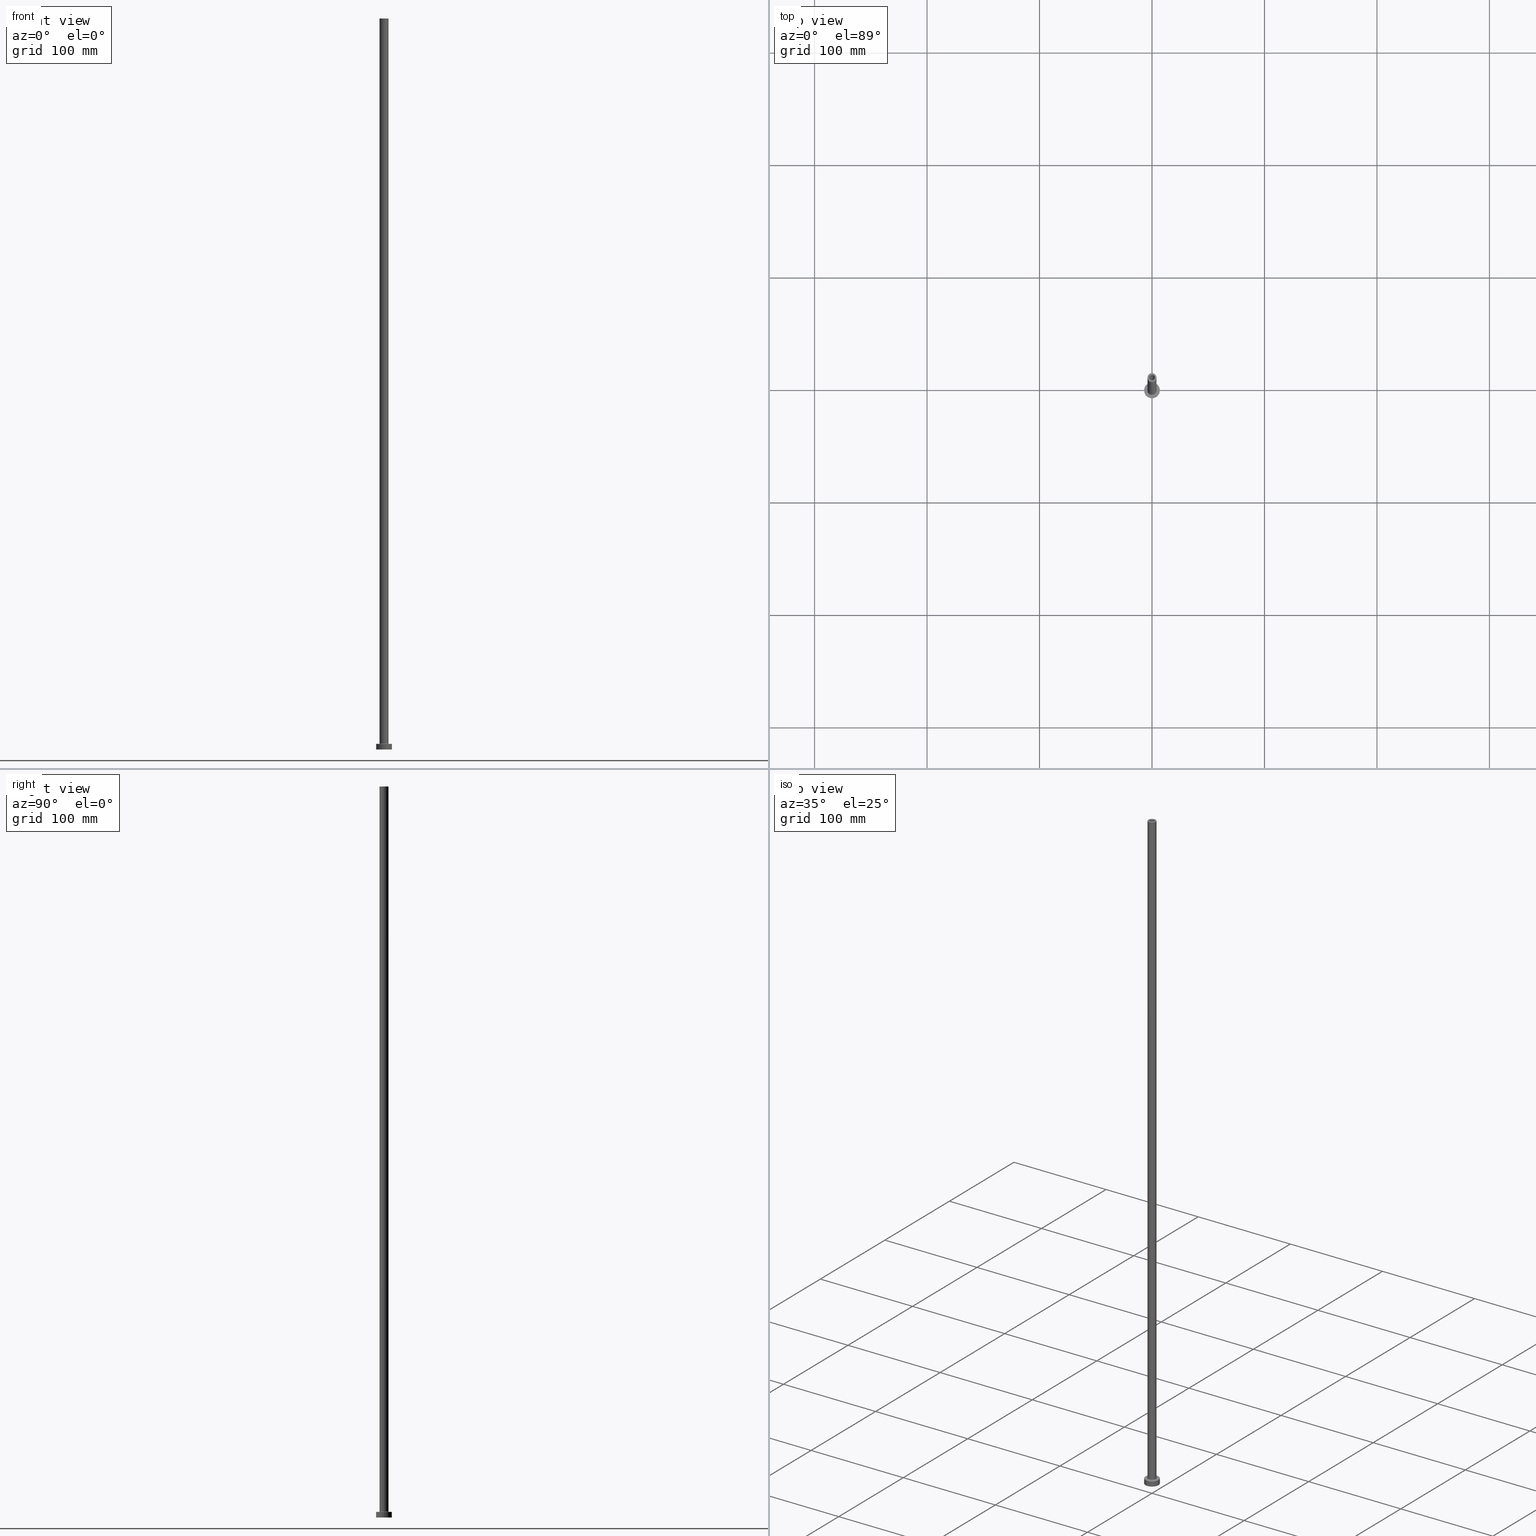
[diagram: canonical four-view strip — front | top / right | iso, engineering-drawing reading convention]
A machine part, canonical four-view strip (front | top / right | iso — engineering-drawing reading convention). The complete STEP part file that produces these views, byte-faithful:
ISO-10303-21;
HEADER;
FILE_DESCRIPTION (( 'STEP AP203' ),
    '1' );
FILE_NAME ('0edf.STEP',
    '2023-02-13T17:08:17',
    ( '' ),
    ( '' ),
    'SwSTEP 2.0',
    'SolidWorks 2019',
    '' );
FILE_SCHEMA (( 'CONFIG_CONTROL_DESIGN' ));
ENDSEC;

DATA;
#1 = DIRECTION ( 'NONE',  ( 1.000000000000000000, 0.000000000000000000, 0.000000000000000000 ) ) ;
#2 = FACE_OUTER_BOUND ( 'NONE', #372, .T. ) ;
#3 = VECTOR ( 'NONE', #373, 1000.000000000000000 ) ;
#4 = AXIS2_PLACEMENT_3D ( 'NONE', #81, #155, #121 ) ;
#5 = DATE_TIME_ROLE ( 'creation_date' ) ;
#6 = CARTESIAN_POINT ( 'NONE',  ( 0.000000000000000000, 0.000000000000000000, 650.0000000000000000 ) ) ;
#7 = DIRECTION ( 'NONE',  ( 1.224646799147353207E-16, 1.000000000000000000, -0.000000000000000000 ) ) ;
#8 = ORIENTED_EDGE ( 'NONE', *, *, #201, .F. ) ;
#9 = CARTESIAN_POINT ( 'NONE',  ( 2.649999999999999911, 3.245314017740485469E-16, 0.000000000000000000 ) ) ;
#10 = EDGE_CURVE ( 'NONE', #198, #122, #230, .T. ) ;
#11 = LOCAL_TIME ( 18, 8, 17.00000000000000000, #221 ) ;
#12 = ORIENTED_EDGE ( 'NONE', *, *, #294, .T. ) ;
#13 = AXIS2_PLACEMENT_3D ( 'NONE', #233, #186, #334 ) ;
#14 = FACE_BOUND ( 'NONE', #89, .T. ) ;
#15 = ORIENTED_EDGE ( 'NONE', *, *, #430, .F. ) ;
#16 = FACE_OUTER_BOUND ( 'NONE', #241, .T. ) ;
#17 = ORIENTED_EDGE ( 'NONE', *, *, #271, .F. ) ;
#18 = CARTESIAN_POINT ( 'NONE',  ( 0.000000000000000000, 0.000000000000000000, 0.000000000000000000 ) ) ;
#19 = VERTEX_POINT ( 'NONE', #379 ) ;
#20 = AXIS2_PLACEMENT_3D ( 'NONE', #120, #179, #1 ) ;
#21 = FACE_OUTER_BOUND ( 'NONE', #340, .T. ) ;
#22 = ORIENTED_EDGE ( 'NONE', *, *, #430, .T. ) ;
#23 = DIRECTION ( 'NONE',  ( 1.000000000000000000, 0.000000000000000000, 0.000000000000000000 ) ) ;
#24 = EDGE_CURVE ( 'NONE', #107, #276, #385, .T. ) ;
#25 = ORIENTED_EDGE ( 'NONE', *, *, #116, .F. ) ;
#26 = FACE_OUTER_BOUND ( 'NONE', #141, .T. ) ;
#27 = AXIS2_PLACEMENT_3D ( 'NONE', #43, #79, #110 ) ;
#28 = ORIENTED_EDGE ( 'NONE', *, *, #119, .F. ) ;
#29 = CIRCLE ( 'NONE', #349, 7.000000000000000000 ) ;
#30 = ORIENTED_EDGE ( 'NONE', *, *, #294, .F. ) ;
#31 = EDGE_CURVE ( 'NONE', #198, #19, #193, .T. ) ;
#32 = DIRECTION ( 'NONE',  ( 0.000000000000000000, -1.000000000000000000, 0.000000000000000000 ) ) ;
#33 = ORIENTED_EDGE ( 'NONE', *, *, #213, .F. ) ;
#34 = FACE_OUTER_BOUND ( 'NONE', #434, .T. ) ;
#35 = DIRECTION ( 'NONE',  ( -0.000000000000000000, -0.000000000000000000, -1.000000000000000000 ) ) ;
#36 = APPROVAL_DATE_TIME ( #74, #113 ) ;
#37 = PLANE ( 'NONE',  #38 ) ;
#38 = AXIS2_PLACEMENT_3D ( 'NONE', #216, #400, #118 ) ;
#39 = DATE_AND_TIME ( #330, #11 ) ;
#40 = CARTESIAN_POINT ( 'NONE',  ( 0.000000000000000000, 0.000000000000000000, 5.000000000000000000 ) ) ;
#41 = CIRCLE ( 'NONE', #365, 7.000000000000000000 ) ;
#42 = VECTOR ( 'NONE', #69, 1000.000000000000000 ) ;
#43 = CARTESIAN_POINT ( 'NONE',  ( 0.000000000000000000, 0.000000000000000000, 5.000000000000000000 ) ) ;
#44 = PERSON_AND_ORGANIZATION_ROLE ( 'design_supplier' ) ;
#45 = DIRECTION ( 'NONE',  ( 1.000000000000000000, 0.000000000000000000, 0.000000000000000000 ) ) ;
#46 = ADVANCED_FACE ( 'NONE', ( #152, #2 ), #37, .T. ) ;
#47 = FACE_OUTER_BOUND ( 'NONE', #298, .T. ) ;
#48 = CC_DESIGN_PERSON_AND_ORGANIZATION_ASSIGNMENT ( #399, #44, ( #262 ) ) ;
#49 = ORIENTED_EDGE ( 'NONE', *, *, #10, .T. ) ;
#50 = DIRECTION ( 'NONE',  ( 0.000000000000000000, 0.000000000000000000, 1.000000000000000000 ) ) ;
#51 = VERTEX_POINT ( 'NONE', #282 ) ;
#52 = CARTESIAN_POINT ( 'NONE',  ( -2.649999999999999911, 0.000000000000000000, 605.0000000000000000 ) ) ;
#53 = EDGE_LOOP ( 'NONE', ( #342, #447, #236, #71 ) ) ;
#54 = AXIS2_PLACEMENT_3D ( 'NONE', #371, #117, #82 ) ;
#55 = CARTESIAN_POINT ( 'NONE',  ( 0.000000000000000000, 0.000000000000000000, 5.000000000000000000 ) ) ;
#56 = ORIENTED_EDGE ( 'NONE', *, *, #448, .F. ) ;
#57 = LOCAL_TIME ( 18, 8, 17.00000000000000000, #460 ) ;
#58 = CARTESIAN_POINT ( 'NONE',  ( 0.000000000000000000, 0.000000000000000000, 650.0000000000000000 ) ) ;
#59 = ADVANCED_BREP_SHAPE_REPRESENTATION ( '0edf', ( #459, #20 ), #195 ) ;
#60 = ORIENTED_EDGE ( 'NONE', *, *, #215, .T. ) ;
#61 = CARTESIAN_POINT ( 'NONE',  ( 0.000000000000000000, 0.000000000000000000, 5.000000000000000000 ) ) ;
#62 = EDGE_CURVE ( 'NONE', #310, #168, #455, .T. ) ;
#63 = ORIENTED_EDGE ( 'NONE', *, *, #125, .F. ) ;
#64 = CARTESIAN_POINT ( 'NONE',  ( 4.500000000000000888, 0.000000000000000000, 4.999999999999975131 ) ) ;
#65 = EDGE_CURVE ( 'NONE', #383, #415, #344, .T. ) ;
#66 = ORIENTED_EDGE ( 'NONE', *, *, #31, .F. ) ;
#67 = CIRCLE ( 'NONE', #428, 4.000000000000000000 ) ;
#68 = CC_DESIGN_APPROVAL ( #113, ( #286 ) ) ;
#69 = DIRECTION ( 'NONE',  ( 0.000000000000000000, 0.000000000000000000, -1.000000000000000000 ) ) ;
#70 = AXIS2_PLACEMENT_3D ( 'NONE', #378, #265, #167 ) ;
#71 = ORIENTED_EDGE ( 'NONE', *, *, #391, .F. ) ;
#72 = CC_DESIGN_PERSON_AND_ORGANIZATION_ASSIGNMENT ( #357, #291, ( #262 ) ) ;
#73 = PRODUCT_DEFINITION_SHAPE ( 'NONE', 'NONE',  #138 ) ;
#74 = DATE_AND_TIME ( #394, #76 ) ;
#75 = EDGE_CURVE ( 'NONE', #122, #453, #284, .T. ) ;
#76 = LOCAL_TIME ( 18, 8, 17.00000000000000000, #359 ) ;
#77 = VECTOR ( 'NONE', #111, 1000.000000000000000 ) ;
#78 = APPROVAL_ROLE ( '' ) ;
#79 = DIRECTION ( 'NONE',  ( -0.000000000000000000, -0.000000000000000000, -1.000000000000000000 ) ) ;
#80 = APPLICATION_PROTOCOL_DEFINITION ( 'international standard', 'config_control_design', 1994, #336 ) ;
#81 = CARTESIAN_POINT ( 'NONE',  ( 0.000000000000000000, 0.000000000000000000, 605.0000000000000000 ) ) ;
#82 = DIRECTION ( 'NONE',  ( 1.000000000000000000, 0.000000000000000000, -0.000000000000000000 ) ) ;
#83 = LOCAL_TIME ( 18, 8, 17.00000000000000000, #285 ) ;
#84 = PERSON_AND_ORGANIZATION ( #332, #458 ) ;
#85 = DIRECTION ( 'NONE',  ( 0.000000000000000000, 0.000000000000000000, 1.000000000000000000 ) ) ;
#86 = EDGE_CURVE ( 'NONE', #51, #130, #209, .T. ) ;
#87 = DIRECTION ( 'NONE',  ( 0.000000000000000000, 0.000000000000000000, -1.000000000000000000 ) ) ;
#88 = AXIS2_PLACEMENT_3D ( 'NONE', #351, #32, #146 ) ;
#89 = EDGE_LOOP ( 'NONE', ( #438, #33 ) ) ;
#90 = AXIS2_PLACEMENT_3D ( 'NONE', #192, #131, #439 ) ;
#91 = CARTESIAN_POINT ( 'NONE',  ( 4.000000000000000000, 4.898587196589411843E-16, 650.0000000000000000 ) ) ;
#92 = ORIENTED_EDGE ( 'NONE', *, *, #391, .T. ) ;
#93 = DIRECTION ( 'NONE',  ( 1.000000000000000000, 0.000000000000000000, 0.000000000000000000 ) ) ;
#94 = ORIENTED_EDGE ( 'NONE', *, *, #375, .F. ) ;
#95 = ADVANCED_FACE ( 'NONE', ( #328 ), #361, .F. ) ;
#96 = DIRECTION ( 'NONE',  ( 0.000000000000000000, 0.000000000000000000, 1.000000000000000000 ) ) ;
#97 = CARTESIAN_POINT ( 'NONE',  ( 0.000000000000000000, 0.000000000000000000, 0.000000000000000000 ) ) ;
#98 = LOCAL_TIME ( 18, 8, 17.00000000000000000, #362 ) ;
#99 = ADVANCED_FACE ( 'NONE', ( #331, #253 ), #224, .T. ) ;
#100 = FACE_OUTER_BOUND ( 'NONE', #269, .T. ) ;
#101 = ORIENTED_EDGE ( 'NONE', *, *, #270, .T. ) ;
#102 = CARTESIAN_POINT ( 'NONE',  ( 0.000000000000000000, 0.000000000000000000, 650.0000000000000000 ) ) ;
#103 = ORIENTED_EDGE ( 'NONE', *, *, #319, .T. ) ;
#104 = LINE ( 'NONE', #246, #42 ) ;
#105 = AXIS2_PLACEMENT_3D ( 'NONE', #293, #85, #182 ) ;
#106 = ADVANCED_FACE ( 'NONE', ( #47 ), #363, .T. ) ;
#107 = VERTEX_POINT ( 'NONE', #250 ) ;
#108 = DIRECTION ( 'NONE',  ( 0.000000000000000000, 0.000000000000000000, 1.000000000000000000 ) ) ;
#109 = AXIS2_PLACEMENT_3D ( 'NONE', #390, #7, #398 ) ;
#110 = DIRECTION ( 'NONE',  ( 1.000000000000000000, 0.000000000000000000, 0.000000000000000000 ) ) ;
#111 = DIRECTION ( 'NONE',  ( 0.000000000000000000, 0.000000000000000000, -1.000000000000000000 ) ) ;
#112 = CALENDAR_DATE ( 2023, 13, 2 ) ;
#113 = APPROVAL ( #151, 'NEUR�EN�' ) ;
#114 = VECTOR ( 'NONE', #133, 1000.000000000000000 ) ;
#115 = DATE_AND_TIME ( #123, #98 ) ;
#116 = EDGE_CURVE ( 'NONE', #370, #267, #245, .T. ) ;
#117 = DIRECTION ( 'NONE',  ( 0.000000000000000000, 0.000000000000000000, 1.000000000000000000 ) ) ;
#118 = DIRECTION ( 'NONE',  ( 1.000000000000000000, 0.000000000000000000, -0.000000000000000000 ) ) ;
#119 = EDGE_CURVE ( 'NONE', #122, #415, #304, .T. ) ;
#120 = CARTESIAN_POINT ( 'NONE',  ( 0.000000000000000000, 0.000000000000000000, 0.000000000000000000 ) ) ;
#121 = DIRECTION ( 'NONE',  ( 1.000000000000000000, 0.000000000000000000, 0.000000000000000000 ) ) ;
#122 = VERTEX_POINT ( 'NONE', #181 ) ;
#123 = CALENDAR_DATE ( 2023, 13, 2 ) ;
#124 = CARTESIAN_POINT ( 'NONE',  ( 0.000000000000000000, 0.000000000000000000, 0.000000000000000000 ) ) ;
#125 = EDGE_CURVE ( 'NONE', #168, #310, #274, .T. ) ;
#126 = EDGE_CURVE ( 'NONE', #370, #107, #257, .T. ) ;
#127 = CARTESIAN_POINT ( 'NONE',  ( 0.000000000000000000, 0.000000000000000000, 0.000000000000000000 ) ) ;
#128 = DIRECTION ( 'NONE',  ( 0.000000000000000000, 0.000000000000000000, 1.000000000000000000 ) ) ;
#129 = AXIS2_PLACEMENT_3D ( 'NONE', #102, #280, #389 ) ;
#130 = VERTEX_POINT ( 'NONE', #323 ) ;
#131 = DIRECTION ( 'NONE',  ( 0.000000000000000000, 0.000000000000000000, 1.000000000000000000 ) ) ;
#132 = ORIENTED_EDGE ( 'NONE', *, *, #319, .F. ) ;
#133 = DIRECTION ( 'NONE',  ( 0.000000000000000000, 0.000000000000000000, -1.000000000000000000 ) ) ;
#134 = VERTEX_POINT ( 'NONE', #9 ) ;
#135 = DIRECTION ( 'NONE',  ( 0.000000000000000000, 0.000000000000000000, -1.000000000000000000 ) ) ;
#136 = ORIENTED_EDGE ( 'NONE', *, *, #10, .F. ) ;
#137 = CC_DESIGN_APPROVAL ( #251, ( #262 ) ) ;
#138 = PRODUCT_DEFINITION ( 'NEZN�M�', '', #262, #433 ) ;
#139 = TOROIDAL_SURFACE ( 'NONE', #347, 4.500000000000000888, 0.5000000000000000000 ) ;
#140 = CARTESIAN_POINT ( 'NONE',  ( 7.000000000000000000, 8.572527594031473190E-16, 5.000000000000000000 ) ) ;
#141 = EDGE_LOOP ( 'NONE', ( #418, #66, #49, #175 ) ) ;
#142 = CARTESIAN_POINT ( 'NONE',  ( 0.000000000000000000, 0.000000000000000000, 650.0000000000000000 ) ) ;
#143 = DIRECTION ( 'NONE',  ( -0.000000000000000000, -0.000000000000000000, -1.000000000000000000 ) ) ;
#144 = DIRECTION ( 'NONE',  ( 0.000000000000000000, 0.000000000000000000, -1.000000000000000000 ) ) ;
#145 = APPROVAL_PERSON_ORGANIZATION ( #327, #113, #78 ) ;
#146 = DIRECTION ( 'NONE',  ( 0.000000000000000000, 0.000000000000000000, -1.000000000000000000 ) ) ;
#147 = FACE_OUTER_BOUND ( 'NONE', #156, .T. ) ;
#148 = CC_DESIGN_PERSON_AND_ORGANIZATION_ASSIGNMENT ( #429, #249, ( #138 ) ) ;
#149 = PERSON_AND_ORGANIZATION ( #332, #458 ) ;
#150 = AXIS2_PLACEMENT_3D ( 'NONE', #292, #290, #45 ) ;
#151 = APPROVAL_STATUS ( 'not_yet_approved' ) ;
#152 = FACE_BOUND ( 'NONE', #264, .T. ) ;
#153 = APPROVAL_DATE_TIME ( #322, #251 ) ;
#154 = DIRECTION ( 'NONE',  ( 1.000000000000000000, 0.000000000000000000, 0.000000000000000000 ) ) ;
#155 = DIRECTION ( 'NONE',  ( 0.000000000000000000, 0.000000000000000000, 1.000000000000000000 ) ) ;
#156 = EDGE_LOOP ( 'NONE', ( #444, #422, #207, #329 ) ) ;
#157 = DIRECTION ( 'NONE',  ( 1.000000000000000000, 0.000000000000000000, 0.000000000000000000 ) ) ;
#158 = CIRCLE ( 'NONE', #240, 2.649999999999999911 ) ;
#159 = ORIENTED_EDGE ( 'NONE', *, *, #278, .F. ) ;
#160 = DIRECTION ( 'NONE',  ( -1.000000000000000000, 0.000000000000000000, 0.000000000000000000 ) ) ;
#161 = ORIENTED_EDGE ( 'NONE', *, *, #448, .T. ) ;
#162 = DIRECTION ( 'NONE',  ( -0.000000000000000000, -0.000000000000000000, -1.000000000000000000 ) ) ;
#163 = ORIENTED_EDGE ( 'NONE', *, *, #86, .F. ) ;
#164 = AXIS2_PLACEMENT_3D ( 'NONE', #432, #404, #402 ) ;
#165 = FACE_OUTER_BOUND ( 'NONE', #313, .T. ) ;
#166 = CIRCLE ( 'NONE', #220, 2.649999999999999911 ) ;
#167 = DIRECTION ( 'NONE',  ( -1.000000000000000000, 0.000000000000000000, 0.000000000000000000 ) ) ;
#168 = VERTEX_POINT ( 'NONE', #436 ) ;
#169 = LINE ( 'NONE', #446, #114 ) ;
#170 = DIRECTION ( 'NONE',  ( 1.000000000000000000, 0.000000000000000000, 0.000000000000000000 ) ) ;
#171 = CYLINDRICAL_SURFACE ( 'NONE', #364, 4.000000000000000000 ) ;
#172 = ORIENTED_EDGE ( 'NONE', *, *, #403, .T. ) ;
#173 = EDGE_CURVE ( 'NONE', #348, #134, #158, .T. ) ;
#174 =( LENGTH_UNIT ( ) NAMED_UNIT ( * ) SI_UNIT ( .MILLI., .METRE. ) );
#175 = ORIENTED_EDGE ( 'NONE', *, *, #75, .T. ) ;
#176 = ORIENTED_EDGE ( 'NONE', *, *, #116, .T. ) ;
#177 = CYLINDRICAL_SURFACE ( 'NONE', #210, 7.000000000000000000 ) ;
#178 = DIRECTION ( 'NONE',  ( -0.000000000000000000, -0.000000000000000000, -1.000000000000000000 ) ) ;
#179 = DIRECTION ( 'NONE',  ( 0.000000000000000000, 0.000000000000000000, 1.000000000000000000 ) ) ;
#180 = CC_DESIGN_PERSON_AND_ORGANIZATION_ASSIGNMENT ( #84, #211, ( #425 ) ) ;
#181 = CARTESIAN_POINT ( 'NONE',  ( -4.000000000000000000, 0.000000000000000000, 5.499999999999949374 ) ) ;
#182 = DIRECTION ( 'NONE',  ( 1.000000000000000000, 0.000000000000000000, 0.000000000000000000 ) ) ;
#183 = CALENDAR_DATE ( 2023, 13, 2 ) ;
#184 = DIRECTION ( 'NONE',  ( -0.000000000000000000, -0.000000000000000000, -1.000000000000000000 ) ) ;
#185 = AXIS2_PLACEMENT_3D ( 'NONE', #6, #222, #154 ) ;
#186 = DIRECTION ( 'NONE',  ( 0.000000000000000000, 0.000000000000000000, 1.000000000000000000 ) ) ;
#187 = VECTOR ( 'NONE', #135, 1000.000000000000000 ) ;
#188 = VERTEX_POINT ( 'NONE', #52 ) ;
#189 = LINE ( 'NONE', #335, #187 ) ;
#190 = EDGE_LOOP ( 'NONE', ( #345, #279, #63, #411 ) ) ;
#191 = ADVANCED_FACE ( 'NONE', ( #14, #16 ), #414, .F. ) ;
#192 = CARTESIAN_POINT ( 'NONE',  ( 0.000000000000000000, 0.000000000000000000, 0.000000000000000000 ) ) ;
#193 = CIRCLE ( 'NONE', #237, 4.000000000000000000 ) ;
#194 = LINE ( 'NONE', #227, #3 ) ;
#195 =( GEOMETRIC_REPRESENTATION_CONTEXT ( 3 ) GLOBAL_UNCERTAINTY_ASSIGNED_CONTEXT ( ( #369 ) ) GLOBAL_UNIT_ASSIGNED_CONTEXT ( ( #174, #452, #392 ) ) REPRESENTATION_CONTEXT ( 'NONE', 'WORKASPACE' ) );
#196 = ORIENTED_EDGE ( 'NONE', *, *, #24, .T. ) ;
#197 = CARTESIAN_POINT ( 'NONE',  ( 0.000000000000000000, 0.000000000000000000, 5.499999999999949374 ) ) ;
#198 = VERTEX_POINT ( 'NONE', #376 ) ;
#199 = DIRECTION ( 'NONE',  ( 1.000000000000000000, 0.000000000000000000, 0.000000000000000000 ) ) ;
#200 = ADVANCED_FACE ( 'NONE', ( #405 ), #297, .F. ) ;
#201 = EDGE_CURVE ( 'NONE', #267, #370, #41, .T. ) ;
#202 = ORIENTED_EDGE ( 'NONE', *, *, #201, .T. ) ;
#203 = DIRECTION ( 'NONE',  ( -1.000000000000000000, 0.000000000000000000, 0.000000000000000000 ) ) ;
#204 = VECTOR ( 'NONE', #380, 1000.000000000000000 ) ;
#205 = CARTESIAN_POINT ( 'NONE',  ( -4.000000000000000000, 0.000000000000000000, 650.0000000000000000 ) ) ;
#206 = CARTESIAN_POINT ( 'NONE',  ( 0.000000000000000000, 0.000000000000000000, 605.0000000000000000 ) ) ;
#207 = ORIENTED_EDGE ( 'NONE', *, *, #353, .T. ) ;
#208 = CARTESIAN_POINT ( 'NONE',  ( 2.649999999999999911, 3.245314017740485469E-16, 612.4953318805775098 ) ) ;
#209 = CIRCLE ( 'NONE', #185, 2.500000000000000000 ) ;
#210 = AXIS2_PLACEMENT_3D ( 'NONE', #244, #178, #203 ) ;
#211 = PERSON_AND_ORGANIZATION_ROLE ( 'design_owner' ) ;
#212 = AXIS2_PLACEMENT_3D ( 'NONE', #338, #229, #160 ) ;
#213 = EDGE_CURVE ( 'NONE', #134, #348, #166, .T. ) ;
#214 = APPROVAL_ROLE ( '' ) ;
#215 = EDGE_CURVE ( 'NONE', #276, #107, #29, .T. ) ;
#216 = CARTESIAN_POINT ( 'NONE',  ( 0.000000000000000000, 0.000000000000000000, 5.000000000000000000 ) ) ;
#217 = CC_DESIGN_SECURITY_CLASSIFICATION ( #286, ( #262 ) ) ;
#218 = PERSON_AND_ORGANIZATION ( #332, #458 ) ;
#219 = DIRECTION ( 'NONE',  ( -0.000000000000000000, -0.000000000000000000, -1.000000000000000000 ) ) ;
#220 = AXIS2_PLACEMENT_3D ( 'NONE', #127, #162, #300 ) ;
#221 = COORDINATED_UNIVERSAL_TIME_OFFSET ( 1, 0, .AHEAD. ) ;
#222 = DIRECTION ( 'NONE',  ( 0.000000000000000000, 0.000000000000000000, 1.000000000000000000 ) ) ;
#223 = ORIENTED_EDGE ( 'NONE', *, *, #62, .T. ) ;
#224 = PLANE ( 'NONE',  #54 ) ;
#225 = APPROVAL ( #431, 'NEUR�EN�' ) ;
#226 = ORIENTED_EDGE ( 'NONE', *, *, #271, .T. ) ;
#227 = CARTESIAN_POINT ( 'NONE',  ( -7.000000000000000000, 0.000000000000000000, 5.000000000000000000 ) ) ;
#228 = CARTESIAN_POINT ( 'NONE',  ( 0.000000000000000000, 0.000000000000000000, 612.4953318805775098 ) ) ;
#229 = DIRECTION ( 'NONE',  ( 0.000000000000000000, 0.000000000000000000, -1.000000000000000000 ) ) ;
#230 = LINE ( 'NONE', #205, #321 ) ;
#231 = DIRECTION ( 'NONE',  ( -1.000000000000000000, 0.000000000000000000, 0.000000000000000000 ) ) ;
#232 = DIRECTION ( 'NONE',  ( 0.000000000000000000, 0.000000000000000000, 1.000000000000000000 ) ) ;
#233 = CARTESIAN_POINT ( 'NONE',  ( 0.000000000000000000, 0.000000000000000000, 605.0000000000000000 ) ) ;
#234 = ORIENTED_EDGE ( 'NONE', *, *, #403, .F. ) ;
#235 = CYLINDRICAL_SURFACE ( 'NONE', #407, 2.649999999999999911 ) ;
#236 = ORIENTED_EDGE ( 'NONE', *, *, #65, .F. ) ;
#237 = AXIS2_PLACEMENT_3D ( 'NONE', #326, #315, #157 ) ;
#238 = DIRECTION ( 'NONE',  ( 0.000000000000000000, 0.000000000000000000, 1.000000000000000000 ) ) ;
#239 = ADVANCED_FACE ( 'NONE', ( #165 ), #268, .F. ) ;
#240 = AXIS2_PLACEMENT_3D ( 'NONE', #124, #409, #302 ) ;
#241 = EDGE_LOOP ( 'NONE', ( #306, #352 ) ) ;
#242 = AXIS2_PLACEMENT_3D ( 'NONE', #40, #295, #360 ) ;
#243 = DIRECTION ( 'NONE',  ( -1.000000000000000000, 0.000000000000000000, 0.000000000000000000 ) ) ;
#244 = CARTESIAN_POINT ( 'NONE',  ( 0.000000000000000000, 0.000000000000000000, 5.000000000000000000 ) ) ;
#245 = CIRCLE ( 'NONE', #242, 7.000000000000000000 ) ;
#246 = CARTESIAN_POINT ( 'NONE',  ( -2.500000000000000000, 0.000000000000000000, 650.0000000000000000 ) ) ;
#247 = MECHANICAL_CONTEXT ( 'NONE', #303, 'mechanical' ) ;
#248 = AXIS2_PLACEMENT_3D ( 'NONE', #206, #108, #275 ) ;
#249 = PERSON_AND_ORGANIZATION_ROLE ( 'creator' ) ;
#250 = CARTESIAN_POINT ( 'NONE',  ( 7.000000000000000000, 8.572527594031473190E-16, 0.000000000000000000 ) ) ;
#251 = APPROVAL ( #397, 'NEUR�EN�' ) ;
#252 = SECURITY_CLASSIFICATION_LEVEL ( 'unclassified' ) ;
#253 = FACE_OUTER_BOUND ( 'NONE', #386, .T. ) ;
#254 = ADVANCED_FACE ( 'NONE', ( #21 ), #443, .T. ) ;
#255 = APPROVAL_PERSON_ORGANIZATION ( #218, #225, #214 ) ;
#256 = ORIENTED_EDGE ( 'NONE', *, *, #350, .T. ) ;
#257 = LINE ( 'NONE', #368, #263 ) ;
#258 = PRODUCT_RELATED_PRODUCT_CATEGORY ( 'detail', '', ( #425 ) ) ;
#259 = EDGE_LOOP ( 'NONE', ( #28, #234, #92, #56 ) ) ;
#260 = CIRCLE ( 'NONE', #88, 0.5000000000000004441 ) ;
#261 = DIRECTION ( 'NONE',  ( 1.000000000000000000, 0.000000000000000000, 0.000000000000000000 ) ) ;
#262 = PRODUCT_DEFINITION_FORMATION_WITH_SPECIFIED_SOURCE ( 'LIBOVOLN�', '', #425, .NOT_KNOWN. ) ;
#263 = VECTOR ( 'NONE', #184, 1000.000000000000000 ) ;
#264 = EDGE_LOOP ( 'NONE', ( #445, #161 ) ) ;
#265 = DIRECTION ( 'NONE',  ( -0.000000000000000000, -0.000000000000000000, -1.000000000000000000 ) ) ;
#266 = CC_DESIGN_DATE_AND_TIME_ASSIGNMENT ( #115, #5, ( #138 ) ) ;
#267 = VERTEX_POINT ( 'NONE', #412 ) ;
#268 = CYLINDRICAL_SURFACE ( 'NONE', #288, 2.649999999999999911 ) ;
#269 = EDGE_LOOP ( 'NONE', ( #132, #94 ) ) ;
#270 = EDGE_CURVE ( 'NONE', #19, #453, #437, .T. ) ;
#271 = EDGE_CURVE ( 'NONE', #267, #276, #194, .T. ) ;
#272 = CARTESIAN_POINT ( 'NONE',  ( 2.500000000000000000, 3.061616997868383141E-16, 605.0000000000000000 ) ) ;
#273 = ORIENTED_EDGE ( 'NONE', *, *, #173, .T. ) ;
#274 = CIRCLE ( 'NONE', #4, 2.500000000000000000 ) ;
#275 = DIRECTION ( 'NONE',  ( 1.000000000000000000, 0.000000000000000000, 0.000000000000000000 ) ) ;
#276 = VERTEX_POINT ( 'NONE', #339 ) ;
#277 = DIRECTION ( 'NONE',  ( -0.000000000000000000, -0.000000000000000000, -1.000000000000000000 ) ) ;
#278 = EDGE_CURVE ( 'NONE', #130, #51, #311, .T. ) ;
#279 = ORIENTED_EDGE ( 'NONE', *, *, #299, .T. ) ;
#280 = DIRECTION ( 'NONE',  ( 0.000000000000000000, 0.000000000000000000, 1.000000000000000000 ) ) ;
#281 = AXIS2_PLACEMENT_3D ( 'NONE', #61, #35, #199 ) ;
#282 = CARTESIAN_POINT ( 'NONE',  ( 2.500000000000000000, 3.061616997868383141E-16, 650.0000000000000000 ) ) ;
#283 = DIRECTION ( 'NONE',  ( 1.000000000000000000, 0.000000000000000000, 0.000000000000000000 ) ) ;
#284 = CIRCLE ( 'NONE', #150, 4.000000000000000000 ) ;
#285 = COORDINATED_UNIVERSAL_TIME_OFFSET ( 1, 0, .AHEAD. ) ;
#286 = SECURITY_CLASSIFICATION ( '', '', #252 ) ;
#287 = SHAPE_DEFINITION_REPRESENTATION ( #73, #59 ) ;
#288 = AXIS2_PLACEMENT_3D ( 'NONE', #228, #87, #231 ) ;
#289 = ADVANCED_FACE ( 'NONE', ( #305 ), #139, .F. ) ;
#290 = DIRECTION ( 'NONE',  ( 0.000000000000000000, 0.000000000000000000, 1.000000000000000000 ) ) ;
#291 = PERSON_AND_ORGANIZATION_ROLE ( 'creator' ) ;
#292 = CARTESIAN_POINT ( 'NONE',  ( 0.000000000000000000, 0.000000000000000000, 5.499999999999949374 ) ) ;
#293 = CARTESIAN_POINT ( 'NONE',  ( 0.000000000000000000, 0.000000000000000000, 605.0000000000000000 ) ) ;
#294 = EDGE_CURVE ( 'NONE', #188, #348, #169, .T. ) ;
#295 = DIRECTION ( 'NONE',  ( 0.000000000000000000, 0.000000000000000000, 1.000000000000000000 ) ) ;
#296 = ORIENTED_EDGE ( 'NONE', *, *, #126, .F. ) ;
#297 = CYLINDRICAL_SURFACE ( 'NONE', #212, 2.500000000000000000 ) ;
#298 = EDGE_LOOP ( 'NONE', ( #296, #8, #226, #60 ) ) ;
#299 = EDGE_CURVE ( 'NONE', #51, #310, #189, .T. ) ;
#300 = DIRECTION ( 'NONE',  ( 1.000000000000000000, 0.000000000000000000, 0.000000000000000000 ) ) ;
#301 = ORIENTED_EDGE ( 'NONE', *, *, #126, .T. ) ;
#302 = DIRECTION ( 'NONE',  ( 1.000000000000000000, 0.000000000000000000, 0.000000000000000000 ) ) ;
#303 = APPLICATION_CONTEXT ( 'configuration controlled 3d designs of mechanical parts and assemblies' ) ;
#304 = CIRCLE ( 'NONE', #109, 0.5000000000000004441 ) ;
#305 = FACE_OUTER_BOUND ( 'NONE', #53, .T. ) ;
#306 = ORIENTED_EDGE ( 'NONE', *, *, #215, .F. ) ;
#307 = DIRECTION ( 'NONE',  ( 1.000000000000000000, 0.000000000000000000, 0.000000000000000000 ) ) ;
#308 = ORIENTED_EDGE ( 'NONE', *, *, #31, .T. ) ;
#309 = CARTESIAN_POINT ( 'NONE',  ( -2.649999999999999911, 0.000000000000000000, 0.000000000000000000 ) ) ;
#310 = VERTEX_POINT ( 'NONE', #272 ) ;
#311 = CIRCLE ( 'NONE', #417, 2.500000000000000000 ) ;
#312 = ADVANCED_FACE ( 'NONE', ( #416, #100 ), #382, .F. ) ;
#313 = EDGE_LOOP ( 'NONE', ( #103, #256, #333, #30 ) ) ;
#314 = DIRECTION ( 'NONE',  ( -1.000000000000000000, 0.000000000000000000, 0.000000000000000000 ) ) ;
#315 = DIRECTION ( 'NONE',  ( 0.000000000000000000, 0.000000000000000000, 1.000000000000000000 ) ) ;
#316 = AXIS2_PLACEMENT_3D ( 'NONE', #97, #232, #170 ) ;
#317 = CARTESIAN_POINT ( 'NONE',  ( 0.000000000000000000, 0.000000000000000000, 605.0000000000000000 ) ) ;
#318 = ADVANCED_FACE ( 'NONE', ( #346 ), #235, .F. ) ;
#319 = EDGE_CURVE ( 'NONE', #188, #451, #374, .T. ) ;
#320 = PERSON_AND_ORGANIZATION_ROLE ( 'classification_officer' ) ;
#321 = VECTOR ( 'NONE', #143, 1000.000000000000000 ) ;
#322 = DATE_AND_TIME ( #112, #57 ) ;
#323 = CARTESIAN_POINT ( 'NONE',  ( -2.500000000000000000, 0.000000000000000000, 650.0000000000000000 ) ) ;
#324 = CIRCLE ( 'NONE', #129, 4.000000000000000000 ) ;
#325 = APPROVAL_ROLE ( '' ) ;
#326 = CARTESIAN_POINT ( 'NONE',  ( 0.000000000000000000, 0.000000000000000000, 650.0000000000000000 ) ) ;
#327 = PERSON_AND_ORGANIZATION ( #332, #458 ) ;
#328 = FACE_OUTER_BOUND ( 'NONE', #259, .T. ) ;
#329 = ORIENTED_EDGE ( 'NONE', *, *, #62, .F. ) ;
#330 = CALENDAR_DATE ( 2023, 13, 2 ) ;
#331 = FACE_BOUND ( 'NONE', #388, .T. ) ;
#332 = PERSON ( 'NEUR�EN�', 'NEUR�EN�', 'NEUR�EN�', ('NEUR�EN�'), ('NEUR�EN�'), ('NEUR�EN�') ) ;
#333 = ORIENTED_EDGE ( 'NONE', *, *, #213, .T. ) ;
#334 = DIRECTION ( 'NONE',  ( 1.000000000000000000, 0.000000000000000000, -0.000000000000000000 ) ) ;
#335 = CARTESIAN_POINT ( 'NONE',  ( 2.500000000000000000, 3.061616997868383141E-16, 650.0000000000000000 ) ) ;
#336 = APPLICATION_CONTEXT ( 'configuration controlled 3d designs of mechanical parts and assemblies' ) ;
#337 = ADVANCED_FACE ( 'NONE', ( #26 ), #171, .T. ) ;
#338 = CARTESIAN_POINT ( 'NONE',  ( 0.000000000000000000, 0.000000000000000000, 650.0000000000000000 ) ) ;
#339 = CARTESIAN_POINT ( 'NONE',  ( -7.000000000000000000, 0.000000000000000000, 0.000000000000000000 ) ) ;
#340 = EDGE_LOOP ( 'NONE', ( #15, #101, #172, #136 ) ) ;
#341 = DIRECTION ( 'NONE',  ( 0.000000000000000000, 0.000000000000000000, 1.000000000000000000 ) ) ;
#342 = ORIENTED_EDGE ( 'NONE', *, *, #75, .F. ) ;
#343 = DIRECTION ( 'NONE',  ( 1.000000000000000000, 0.000000000000000000, 0.000000000000000000 ) ) ;
#344 = CIRCLE ( 'NONE', #27, 4.500000000000000888 ) ;
#345 = ORIENTED_EDGE ( 'NONE', *, *, #278, .T. ) ;
#346 = FACE_OUTER_BOUND ( 'NONE', #406, .T. ) ;
#347 = AXIS2_PLACEMENT_3D ( 'NONE', #197, #341, #23 ) ;
#348 = VERTEX_POINT ( 'NONE', #309 ) ;
#349 = AXIS2_PLACEMENT_3D ( 'NONE', #18, #128, #307 ) ;
#350 = EDGE_CURVE ( 'NONE', #451, #134, #449, .T. ) ;
#351 = CARTESIAN_POINT ( 'NONE',  ( 4.500000000000000888, 0.000000000000000000, 5.499999999999949374 ) ) ;
#352 = ORIENTED_EDGE ( 'NONE', *, *, #24, .F. ) ;
#353 = EDGE_CURVE ( 'NONE', #130, #168, #104, .T. ) ;
#354 = CARTESIAN_POINT ( 'NONE',  ( 4.000000000000000000, 4.898587196589411843E-16, 5.499999999999949374 ) ) ;
#355 = DIRECTION ( 'NONE',  ( 0.000000000000000000, 0.000000000000000000, -1.000000000000000000 ) ) ;
#356 = AXIS2_PLACEMENT_3D ( 'NONE', #142, #355, #243 ) ;
#357 = PERSON_AND_ORGANIZATION ( #332, #458 ) ;
#358 = CC_DESIGN_PERSON_AND_ORGANIZATION_ASSIGNMENT ( #149, #320, ( #286 ) ) ;
#359 = COORDINATED_UNIVERSAL_TIME_OFFSET ( 1, 0, .AHEAD. ) ;
#360 = DIRECTION ( 'NONE',  ( 1.000000000000000000, 0.000000000000000000, 0.000000000000000000 ) ) ;
#361 = TOROIDAL_SURFACE ( 'NONE', #164, 4.500000000000000888, 0.5000000000000000000 ) ;
#362 = COORDINATED_UNIVERSAL_TIME_OFFSET ( 1, 0, .AHEAD. ) ;
#363 = CYLINDRICAL_SURFACE ( 'NONE', #410, 7.000000000000000000 ) ;
#364 = AXIS2_PLACEMENT_3D ( 'NONE', #424, #277, #454 ) ;
#365 = AXIS2_PLACEMENT_3D ( 'NONE', #55, #96, #261 ) ;
#366 = DIRECTION ( 'NONE',  ( -1.000000000000000000, 0.000000000000000000, 0.000000000000000000 ) ) ;
#367 = PERSON_AND_ORGANIZATION ( #332, #458 ) ;
#368 = CARTESIAN_POINT ( 'NONE',  ( 7.000000000000000000, 8.572527594031473190E-16, 5.000000000000000000 ) ) ;
#369 = UNCERTAINTY_MEASURE_WITH_UNIT (LENGTH_MEASURE( 1.000000000000000082E-05 ), #174, 'distance_accuracy_value', 'NONE');
#370 = VERTEX_POINT ( 'NONE', #140 ) ;
#371 = CARTESIAN_POINT ( 'NONE',  ( 0.000000000000000000, 0.000000000000000000, 650.0000000000000000 ) ) ;
#372 = EDGE_LOOP ( 'NONE', ( #202, #176 ) ) ;
#373 = DIRECTION ( 'NONE',  ( -0.000000000000000000, -0.000000000000000000, -1.000000000000000000 ) ) ;
#374 = CIRCLE ( 'NONE', #450, 2.649999999999999911 ) ;
#375 = EDGE_CURVE ( 'NONE', #451, #188, #395, .T. ) ;
#376 = CARTESIAN_POINT ( 'NONE',  ( -4.000000000000000000, 0.000000000000000000, 650.0000000000000000 ) ) ;
#377 = ADVANCED_FACE ( 'NONE', ( #147 ), #419, .F. ) ;
#378 = CARTESIAN_POINT ( 'NONE',  ( 0.000000000000000000, 0.000000000000000000, 650.0000000000000000 ) ) ;
#379 = CARTESIAN_POINT ( 'NONE',  ( 4.000000000000000000, 4.898587196589411843E-16, 650.0000000000000000 ) ) ;
#380 = DIRECTION ( 'NONE',  ( -0.000000000000000000, -0.000000000000000000, -1.000000000000000000 ) ) ;
#381 = EDGE_LOOP ( 'NONE', ( #413, #223 ) ) ;
#382 = PLANE ( 'NONE',  #13 ) ;
#383 = VERTEX_POINT ( 'NONE', #64 ) ;
#384 = CARTESIAN_POINT ( 'NONE',  ( -4.500000000000000888, 5.510910596163088569E-16, 4.999999999999975131 ) ) ;
#385 = CIRCLE ( 'NONE', #316, 7.000000000000000000 ) ;
#386 = EDGE_LOOP ( 'NONE', ( #308, #22 ) ) ;
#387 = CARTESIAN_POINT ( 'NONE',  ( 0.000000000000000000, 0.000000000000000000, 5.499999999999949374 ) ) ;
#388 = EDGE_LOOP ( 'NONE', ( #159, #163 ) ) ;
#389 = DIRECTION ( 'NONE',  ( 1.000000000000000000, 0.000000000000000000, 0.000000000000000000 ) ) ;
#390 = CARTESIAN_POINT ( 'NONE',  ( -4.500000000000000888, 5.510910596163089556E-16, 5.499999999999949374 ) ) ;
#391 = EDGE_CURVE ( 'NONE', #453, #383, #260, .T. ) ;
#392 =( NAMED_UNIT ( * ) SI_UNIT ( $, .STERADIAN. ) SOLID_ANGLE_UNIT ( ) );
#393 = CLOSED_SHELL ( 'NONE', ( #200, #239, #289, #254, #461, #106, #46, #191, #337, #99, #95, #318, #312, #377 ) ) ;
#394 = CALENDAR_DATE ( 2023, 13, 2 ) ;
#395 = CIRCLE ( 'NONE', #248, 2.649999999999999911 ) ;
#396 = DATE_AND_TIME ( #183, #83 ) ;
#397 = APPROVAL_STATUS ( 'not_yet_approved' ) ;
#398 = DIRECTION ( 'NONE',  ( -1.000000000000000000, 1.224646799147351482E-16, 0.000000000000000000 ) ) ;
#399 = PERSON_AND_ORGANIZATION ( #332, #458 ) ;
#400 = DIRECTION ( 'NONE',  ( 0.000000000000000000, 0.000000000000000000, 1.000000000000000000 ) ) ;
#401 = APPLICATION_PROTOCOL_DEFINITION ( 'international standard', 'config_control_design', 1994, #303 ) ;
#402 = DIRECTION ( 'NONE',  ( 1.000000000000000000, 0.000000000000000000, 0.000000000000000000 ) ) ;
#403 = EDGE_CURVE ( 'NONE', #453, #122, #67, .T. ) ;
#404 = DIRECTION ( 'NONE',  ( 0.000000000000000000, 0.000000000000000000, 1.000000000000000000 ) ) ;
#405 = FACE_OUTER_BOUND ( 'NONE', #190, .T. ) ;
#406 = EDGE_LOOP ( 'NONE', ( #440, #420, #12, #273 ) ) ;
#407 = AXIS2_PLACEMENT_3D ( 'NONE', #421, #144, #314 ) ;
#408 = CC_DESIGN_APPROVAL ( #225, ( #138 ) ) ;
#409 = DIRECTION ( 'NONE',  ( -0.000000000000000000, -0.000000000000000000, -1.000000000000000000 ) ) ;
#410 = AXIS2_PLACEMENT_3D ( 'NONE', #456, #219, #366 ) ;
#411 = ORIENTED_EDGE ( 'NONE', *, *, #353, .F. ) ;
#412 = CARTESIAN_POINT ( 'NONE',  ( -7.000000000000000000, 0.000000000000000000, 5.000000000000000000 ) ) ;
#413 = ORIENTED_EDGE ( 'NONE', *, *, #125, .T. ) ;
#414 = PLANE ( 'NONE',  #90 ) ;
#415 = VERTEX_POINT ( 'NONE', #384 ) ;
#416 = FACE_BOUND ( 'NONE', #381, .T. ) ;
#417 = AXIS2_PLACEMENT_3D ( 'NONE', #58, #50, #93 ) ;
#418 = ORIENTED_EDGE ( 'NONE', *, *, #270, .F. ) ;
#419 = CYLINDRICAL_SURFACE ( 'NONE', #356, 2.500000000000000000 ) ;
#420 = ORIENTED_EDGE ( 'NONE', *, *, #375, .T. ) ;
#421 = CARTESIAN_POINT ( 'NONE',  ( 0.000000000000000000, 0.000000000000000000, 612.4953318805775098 ) ) ;
#422 = ORIENTED_EDGE ( 'NONE', *, *, #86, .T. ) ;
#423 = CARTESIAN_POINT ( 'NONE',  ( 2.649999999999999911, 3.245314017740485469E-16, 605.0000000000000000 ) ) ;
#424 = CARTESIAN_POINT ( 'NONE',  ( 0.000000000000000000, 0.000000000000000000, 650.0000000000000000 ) ) ;
#425 = PRODUCT ( '0edf', '0edf', '', ( #247 ) ) ;
#426 = CC_DESIGN_DATE_AND_TIME_ASSIGNMENT ( #396, #427, ( #286 ) ) ;
#427 = DATE_TIME_ROLE ( 'classification_date' ) ;
#428 = AXIS2_PLACEMENT_3D ( 'NONE', #387, #238, #283 ) ;
#429 = PERSON_AND_ORGANIZATION ( #332, #458 ) ;
#430 = EDGE_CURVE ( 'NONE', #19, #198, #324, .T. ) ;
#431 = APPROVAL_STATUS ( 'not_yet_approved' ) ;
#432 = CARTESIAN_POINT ( 'NONE',  ( 0.000000000000000000, 0.000000000000000000, 5.499999999999949374 ) ) ;
#433 = DESIGN_CONTEXT ( 'detailed design', #336, 'design' ) ;
#434 = EDGE_LOOP ( 'NONE', ( #25, #301, #196, #17 ) ) ;
#435 = APPROVAL_DATE_TIME ( #39, #225 ) ;
#436 = CARTESIAN_POINT ( 'NONE',  ( -2.500000000000000000, 0.000000000000000000, 605.0000000000000000 ) ) ;
#437 = LINE ( 'NONE', #91, #204 ) ;
#438 = ORIENTED_EDGE ( 'NONE', *, *, #173, .F. ) ;
#439 = DIRECTION ( 'NONE',  ( 1.000000000000000000, 0.000000000000000000, -0.000000000000000000 ) ) ;
#440 = ORIENTED_EDGE ( 'NONE', *, *, #350, .F. ) ;
#441 = CIRCLE ( 'NONE', #281, 4.500000000000000888 ) ;
#442 = APPROVAL_PERSON_ORGANIZATION ( #367, #251, #325 ) ;
#443 = CYLINDRICAL_SURFACE ( 'NONE', #70, 4.000000000000000000 ) ;
#444 = ORIENTED_EDGE ( 'NONE', *, *, #299, .F. ) ;
#445 = ORIENTED_EDGE ( 'NONE', *, *, #65, .T. ) ;
#446 = CARTESIAN_POINT ( 'NONE',  ( -2.649999999999999911, 0.000000000000000000, 612.4953318805775098 ) ) ;
#447 = ORIENTED_EDGE ( 'NONE', *, *, #119, .T. ) ;
#448 = EDGE_CURVE ( 'NONE', #415, #383, #441, .T. ) ;
#449 = LINE ( 'NONE', #208, #77 ) ;
#450 = AXIS2_PLACEMENT_3D ( 'NONE', #317, #457, #343 ) ;
#451 = VERTEX_POINT ( 'NONE', #423 ) ;
#452 =( NAMED_UNIT ( * ) PLANE_ANGLE_UNIT ( ) SI_UNIT ( $, .RADIAN. ) );
#453 = VERTEX_POINT ( 'NONE', #354 ) ;
#454 = DIRECTION ( 'NONE',  ( -1.000000000000000000, 0.000000000000000000, 0.000000000000000000 ) ) ;
#455 = CIRCLE ( 'NONE', #105, 2.500000000000000000 ) ;
#456 = CARTESIAN_POINT ( 'NONE',  ( 0.000000000000000000, 0.000000000000000000, 5.000000000000000000 ) ) ;
#457 = DIRECTION ( 'NONE',  ( 0.000000000000000000, 0.000000000000000000, 1.000000000000000000 ) ) ;
#458 = ORGANIZATION ( 'NEUR�EN�', 'NEUR�EN�', '' ) ;
#459 = MANIFOLD_SOLID_BREP ( 'Odebrat vysunut�m4', #393 ) ;
#460 = COORDINATED_UNIVERSAL_TIME_OFFSET ( 1, 0, .AHEAD. ) ;
#461 = ADVANCED_FACE ( 'NONE', ( #34 ), #177, .T. ) ;
ENDSEC;
END-ISO-10303-21;
